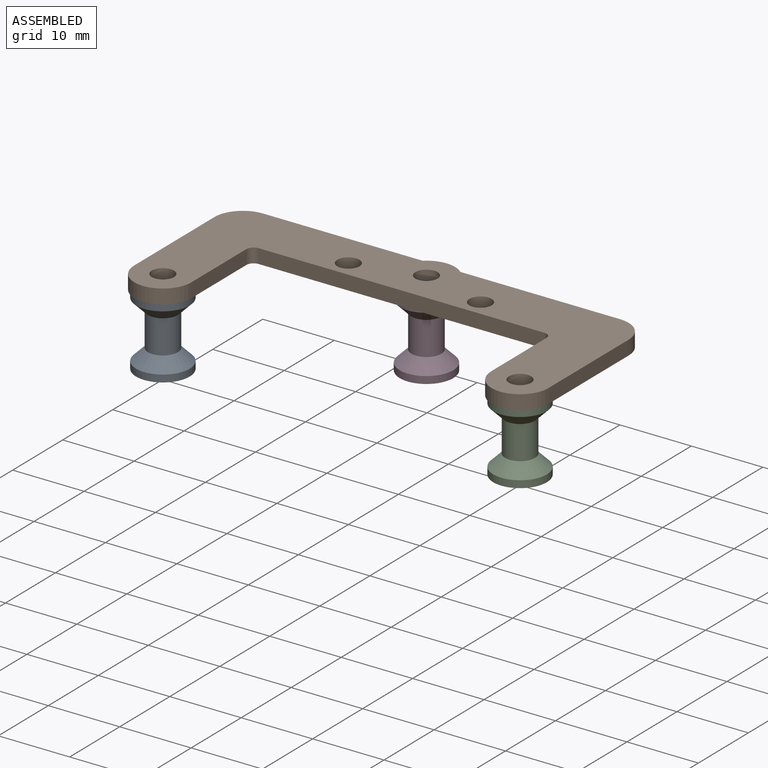
[diagram: assembled view]
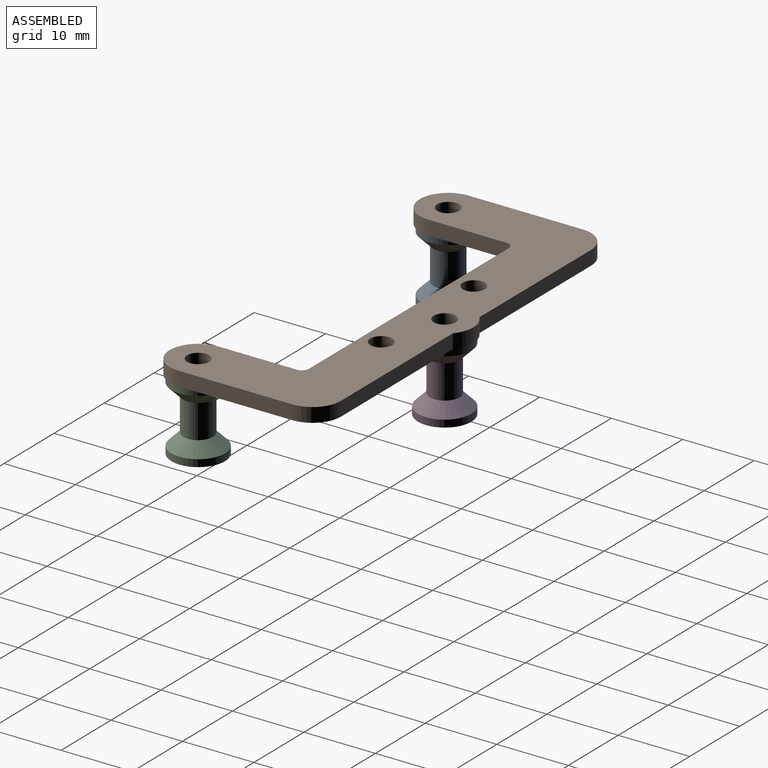
[diagram: assembled view, second angle]
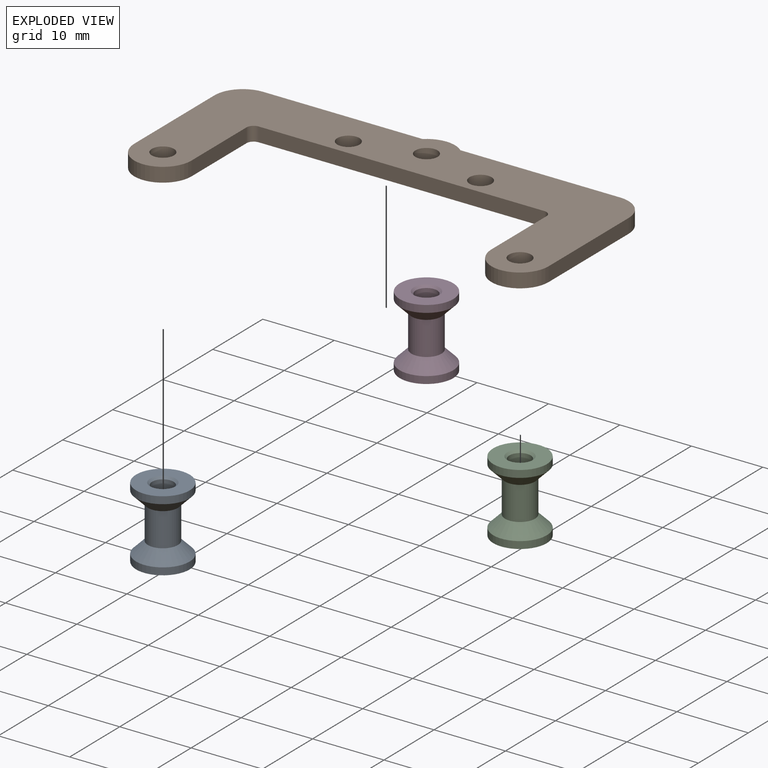
[diagram: exploded view]
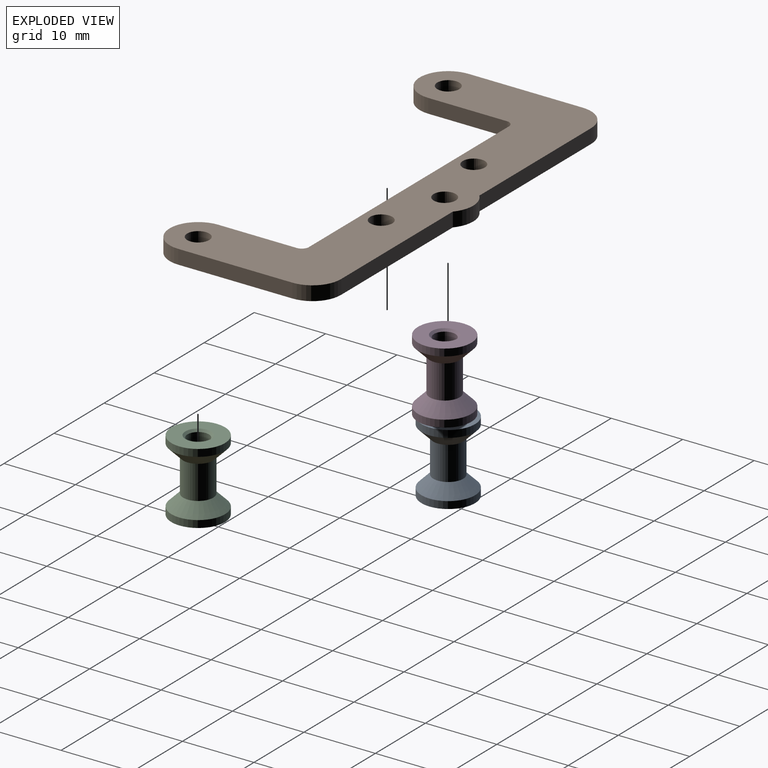
[diagram: exploded view, second angle]
ASSEMBLY  parts=4 mates=3
PART A: 10 faces, bbox 7.5x7.5x10 mm
  f0: cylinder r=2.1mm len=4.7mm, axis (0,0,-1), area 62mm2, adj f5,f6
  f1: cylinder r=3.75mm len=7.5mm, axis (0,0,1), area 23.6mm2, adj f2,f6
  f2: plane 7.5x7.5mm, normal (0,0,1), area 34mm2, adj f1,f8
  f3: cylinder r=3.75mm len=7.5mm, axis (0,0,-1), area 23.6mm2, adj f4,f5
  f4: plane 7.5x7.5mm, normal (0,0,-1), area 34mm2, adj f3,f9
  f5: cone r=2.1mm half-angle=45deg, axis (0,0,-1), area 42.9mm2, adj f0,f3
  f6: cone r=3.75mm half-angle=45deg, axis (0,0,1), area 42.9mm2, adj f0,f1
  f7: cylinder r=1.5mm len=9.4mm, axis (0,0,1), area 88.6mm2, adj f8,f9
  f8: cone r=1.5mm half-angle=45deg, axis (0,0,1), area 4.4mm2, adj f2,f7
  f9: cone r=1.8mm half-angle=45deg, axis (0,0,-1), area 4.4mm2, adj f4,f7
PART B: 21 faces, bbox 58x25x2 mm
  f0: cylinder r=4mm len=4mm, axis (0,0,-1), area 12.6mm2, adj f1,f17,f19,f20
  f1: plane 16x2mm, normal (-1,0,0), area 32mm2, adj f0,f2,f19,f20
  f2: cylinder r=4mm len=8mm, axis (0,0,-1), area 25.1mm2, adj f1,f3,f19,f20
  f3: plane 11x2mm, normal (1,0,0), area 22mm2, adj f2,f4,f19,f20
  f4: cylinder r=1mm len=2mm, axis (0,0,-1), area 3.1mm2, adj f3,f5,f19,f20
  f5: plane 40x2mm, normal (0,-1,0), area 80mm2, adj f4,f6,f19,f20
  f6: cylinder r=1mm len=2mm, axis (0,0,-1), area 3.1mm2, adj f5,f7,f19,f20
  f7: plane 11x2mm, normal (-1,0,0), area 22mm2, adj f6,f8,f19,f20
  f8: cylinder r=4mm len=8mm, axis (0,0,-1), area 25.1mm2, adj f7,f9,f19,f20
  f9: plane 16x2mm, normal (1,0,0), area 32mm2, adj f8,f10,f19,f20
  f10: cylinder r=4mm len=4mm, axis (0,0,-1), area 12.6mm2, adj f9,f11,f19,f20
  f11: plane 22.35x2mm, normal (0,1,0), area 44.7mm2, adj f10,f12,f19,f20
  f12: cylinder r=4mm len=5.29mm, axis (0,0,-1), area 11.6mm2, adj f11,f17,f19,f20
  f13: cylinder r=1.55mm len=3.1mm, axis (0,0,-1), area 19.5mm2, adj f19,f20
  f14: cylinder r=1.55mm len=3.1mm, axis (0,0,-1), area 19.5mm2, adj f19,f20
  f15: cylinder r=1.55mm len=3.1mm, axis (0,0,-1), area 19.5mm2, adj f19,f20
  f16: cylinder r=1.55mm len=3.1mm, axis (0,0,-1), area 19.5mm2, adj f19,f20
  f17: plane 22.35x2mm, normal (0,1,0), area 44.7mm2, adj f0,f12,f19,f20
  f18: cylinder r=1.55mm len=3.1mm, axis (0,0,-1), area 19.5mm2, adj f19,f20
  f19: plane 58x25mm, normal (0,0,1), area 665.7mm2, adj f0,f1,f2,f3,f4,f5,f6,f7
  f20: plane 58x25mm, normal (0,0,-1), area 665.7mm2, adj f0,f1,f2,f3,f4,f5,f6,f7
PART C: same geometry as A
PART D: same geometry as A
PLACE A t=(-20.47,-2.13,-6.72)mm
PLACE B t=(4.53,14.87,3.28)mm
PLACE C t=(29.53,-2.13,-6.72)mm
PLACE D t=(4.53,14.87,-6.72)mm
MATE fastened D.f0 <-> B.f12  axis (0,0,1) through (4.53,14.87,3.28)mm
MATE fastened A.f0 <-> B.f2  axis (0,0,1) through (-20.47,-2.13,3.28)mm
MATE fastened C.f0 <-> B.f8  axis (0,0,1) through (29.53,-2.13,3.28)mm
